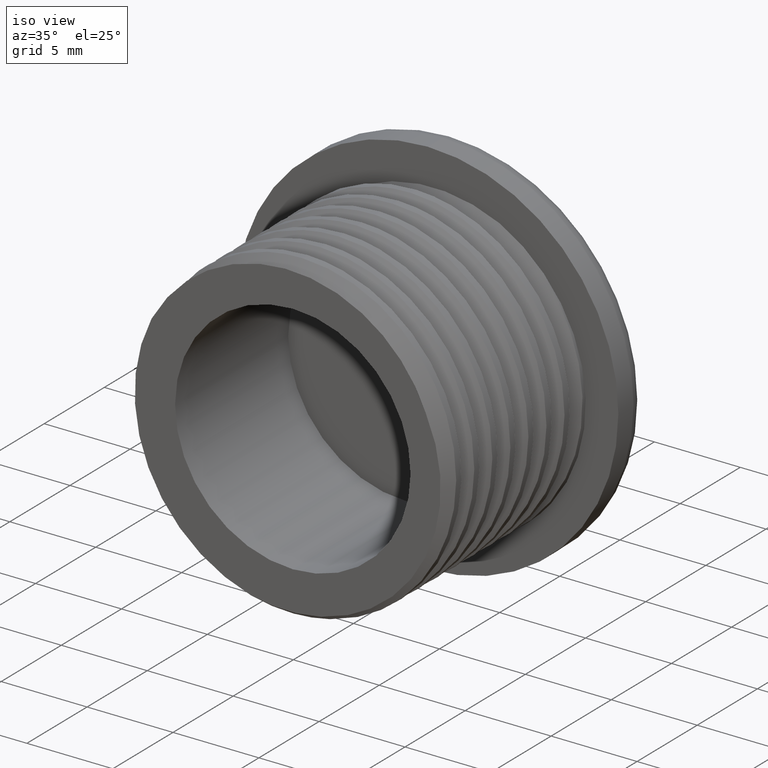
[diagram: clean part render]
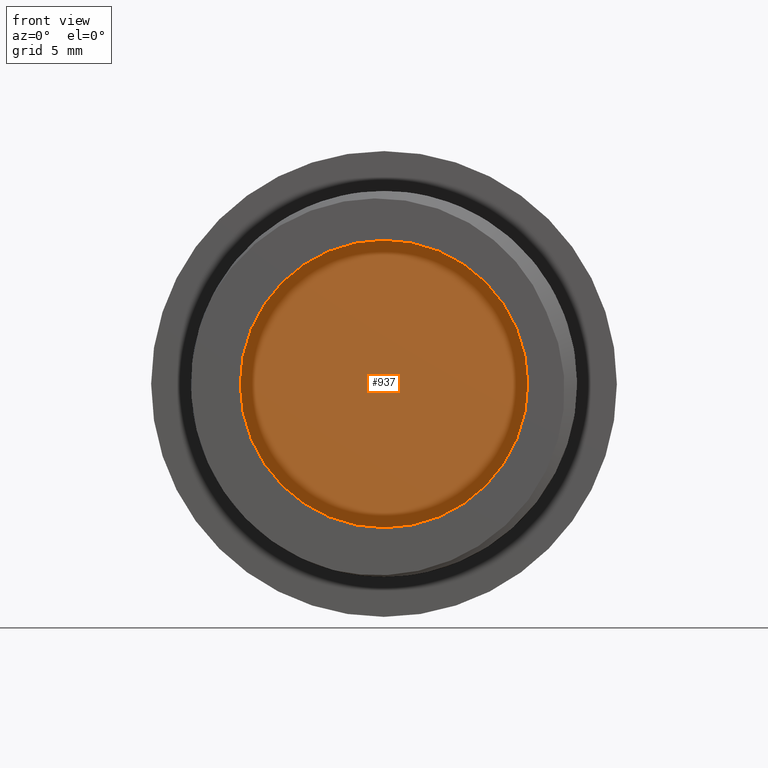
[diagram: tour spotlight — one face highlighted and labeled with its STEP entity id]
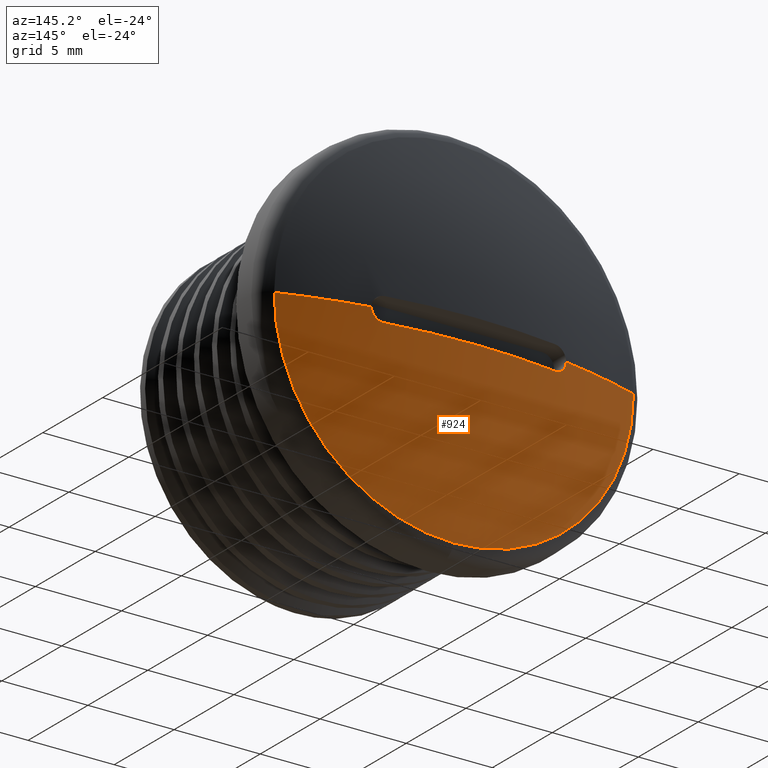
[diagram: tour spotlight — one face highlighted and labeled with its STEP entity id]
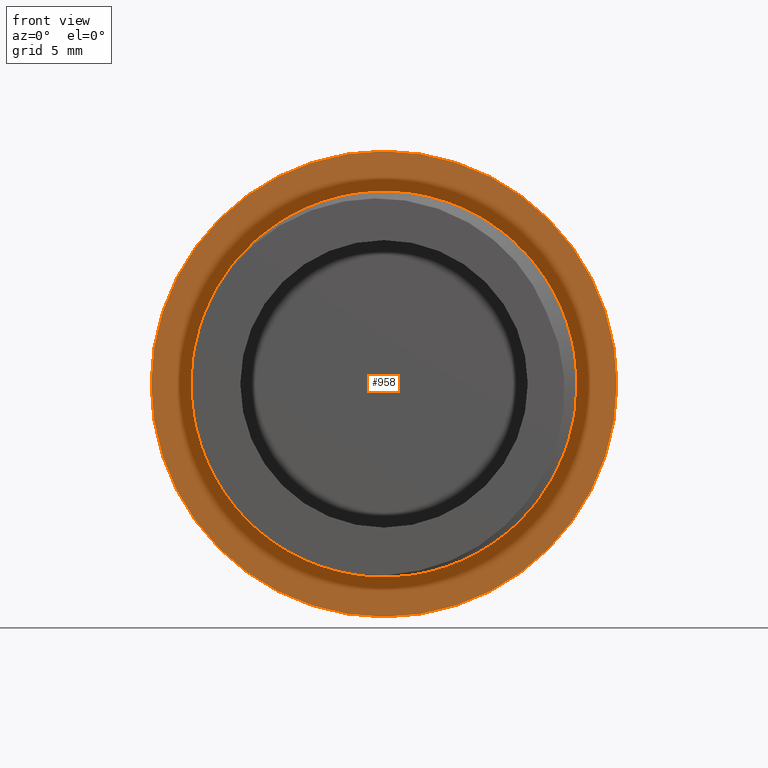
[diagram: tour spotlight — one face highlighted and labeled with its STEP entity id]
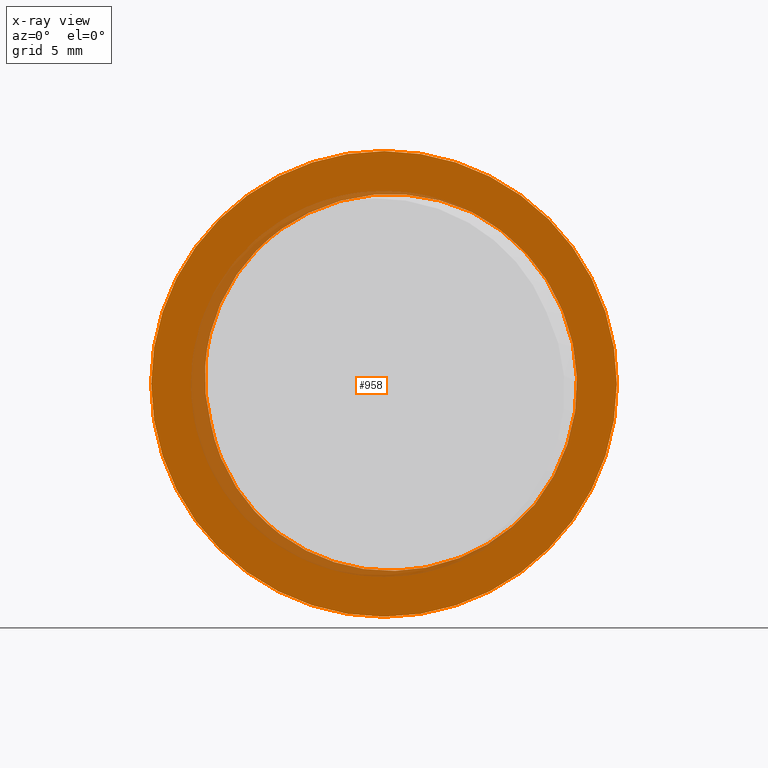
[diagram: x-ray of the same camera — body ghosted, this tour face saturated]
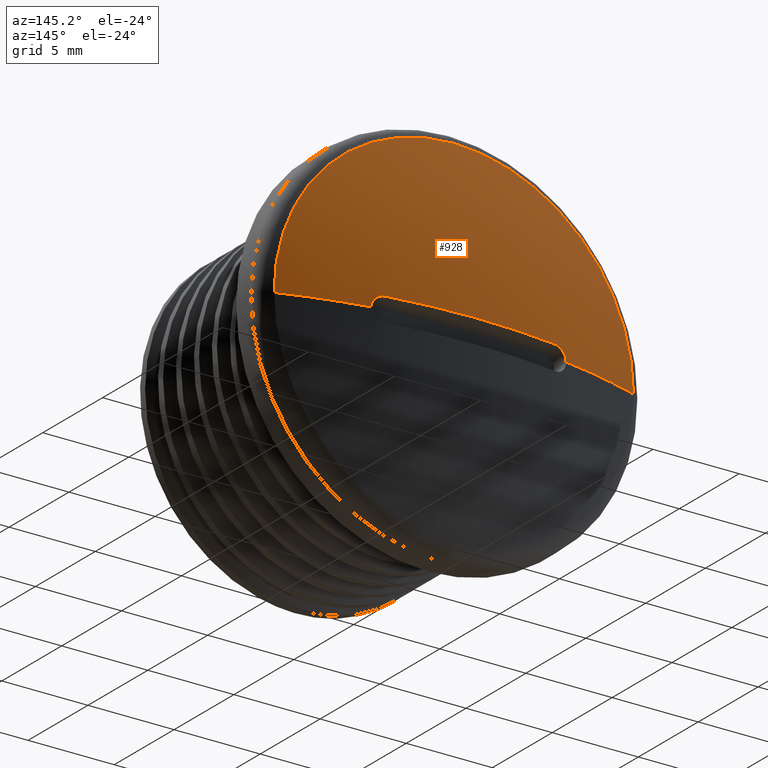
[diagram: tour spotlight — one face highlighted and labeled with its STEP entity id]
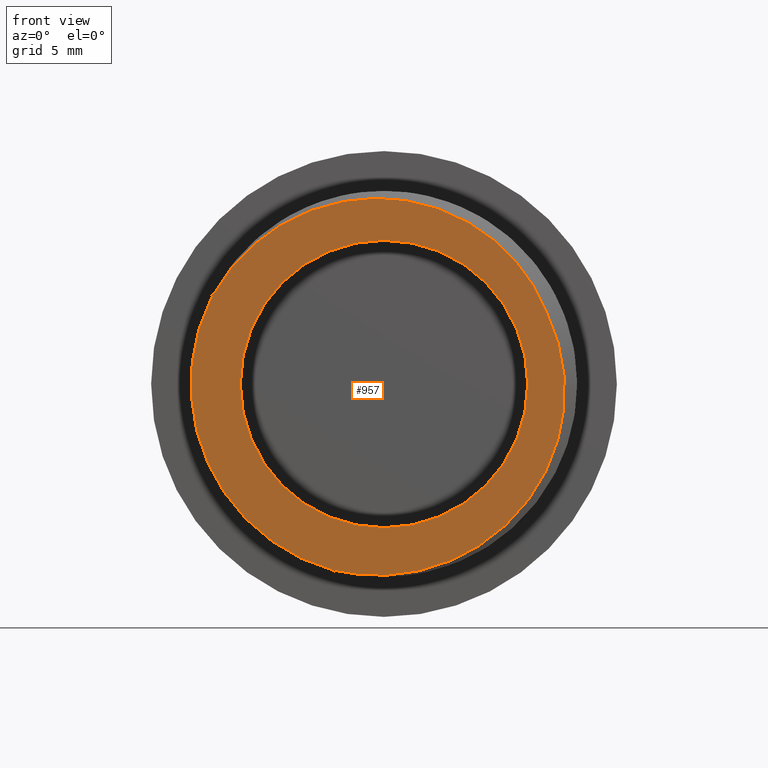
[diagram: tour spotlight — one face highlighted and labeled with its STEP entity id]
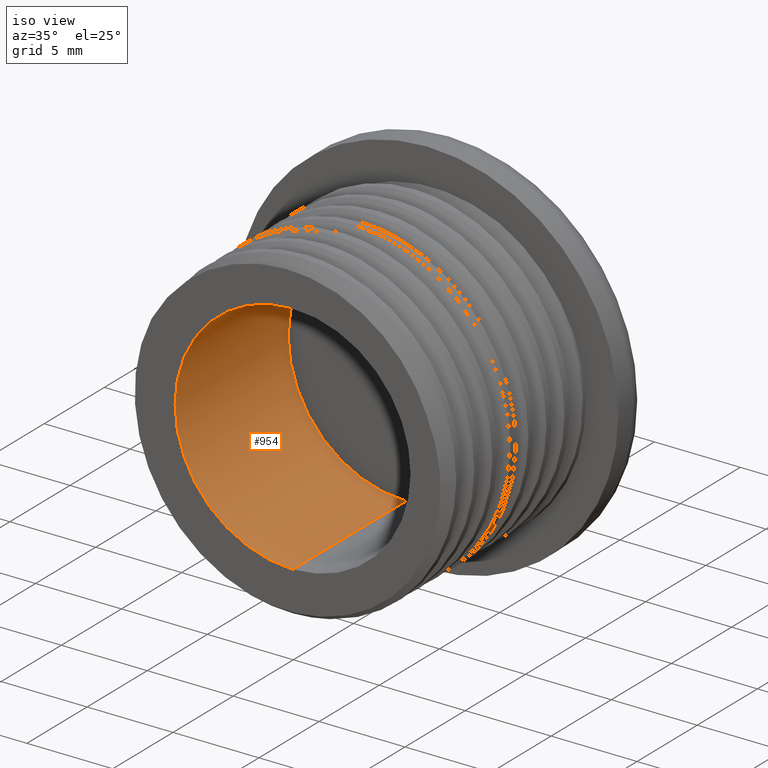
[diagram: tour spotlight — one face highlighted and labeled with its STEP entity id]
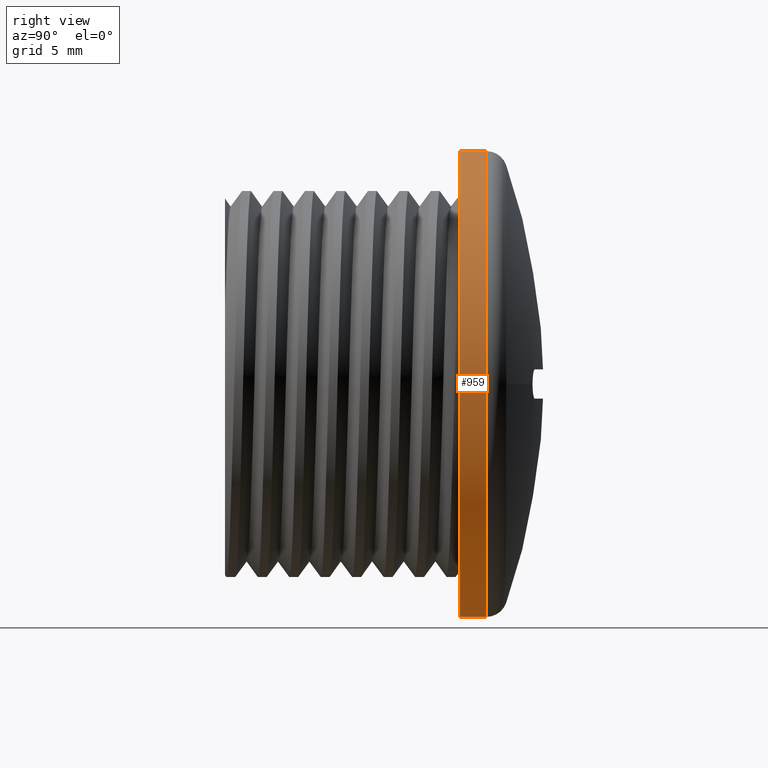
[diagram: tour spotlight — one face highlighted and labeled with its STEP entity id]
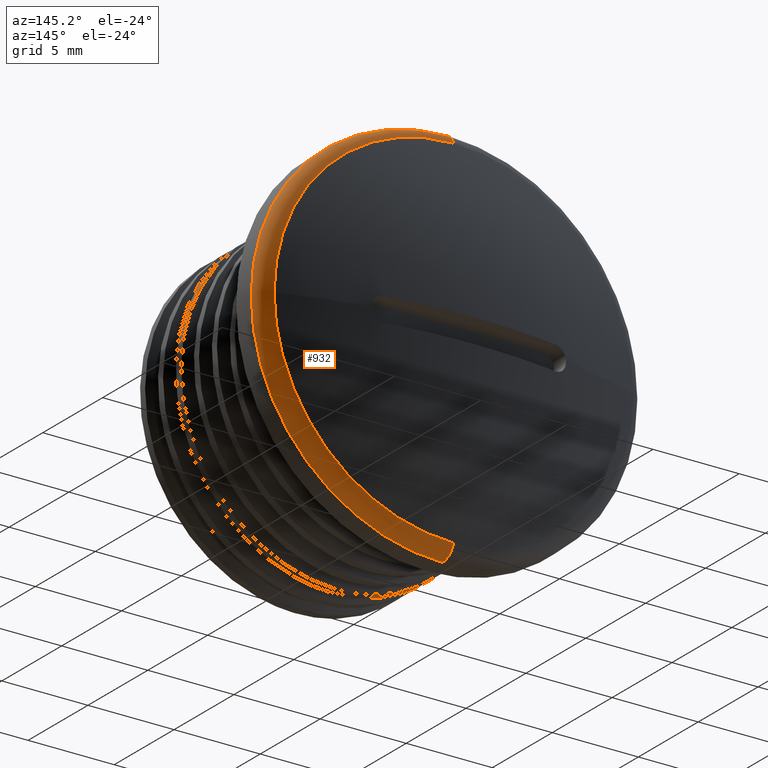
[diagram: tour spotlight — one face highlighted and labeled with its STEP entity id]
A machine part: a face-by-face anatomy tour. The part has 38 B-rep faces; the first image is the clean iso view, then the 8 largest visible faces are spotlighted one at a time (largest first), each with its STEP entity span.

Face 1 — front view, entity #937. In plain terms, the highlighted planar face has unit normal (0, 1, 0).
Definition (entity closure, byte-faithful):
#419 = DIRECTION ( 'NONE',  ( -0.0000000000000000000, -1.000000000000000000, -0.0000000000000000000 ) ) ;
#420 = DIRECTION ( 'NONE',  ( 0.0000000000000000000, 0.0000000000000000000, -1.000000000000000000 ) ) ;
#423 = CARTESIAN_POINT ( 'NONE',  ( 0.0000000000000000000, 9.357954256561425800, 0.0000000000000000000 ) ) ;
#593 = ORIENTED_EDGE ( 'NONE', *, *, #849, .T. ) ;
#607 = ORIENTED_EDGE ( 'NONE', *, *, #905, .T. ) ;
#658 = EDGE_LOOP ( 'NONE', ( #607, #593 ) ) ;
#723 = VERTEX_POINT ( 'NONE', #788 ) ;
#730 = VERTEX_POINT ( 'NONE', #804 ) ;
#788 = CARTESIAN_POINT ( 'NONE',  ( 8.388830574159371800E-016, 9.357954256561425800, 6.850000000000002300 ) ) ;
#804 = CARTESIAN_POINT ( 'NONE',  ( 0.0000000000000000000, 9.357954256561425800, -6.850000000000002300 ) ) ;
#849 = EDGE_CURVE ( 'NONE', #723, #730, #2088, .T. ) ;
#905 = EDGE_CURVE ( 'NONE', #730, #723, #2139, .T. ) ;
#937 = ADVANCED_FACE ( 'NONE', ( #1803 ), #1791, .F. ) ;
#1787 = CARTESIAN_POINT ( 'NONE',  ( -6.850000000000002300, 9.357954256561425800, 0.0000000000000000000 ) ) ;
#1788 = DIRECTION ( 'NONE',  ( 0.0000000000000000000, -0.0000000000000000000, 1.000000000000000000 ) ) ;
#1791 = PLANE ( 'NONE',  #2165 ) ;
#1799 = DIRECTION ( 'NONE',  ( 0.0000000000000000000, 1.000000000000000000, 0.0000000000000000000 ) ) ;
#1803 = FACE_OUTER_BOUND ( 'NONE', #658, .T. ) ;
#2085 = AXIS2_PLACEMENT_3D ( 'NONE', #423, #419, #420 ) ;
#2088 = CIRCLE ( 'NONE', #2085, 6.850000000000002300 ) ;
#2136 = AXIS2_PLACEMENT_3D ( 'NONE', #2284, #2285, #2287 ) ;
#2139 = CIRCLE ( 'NONE', #2136, 6.850000000000002300 ) ;
#2165 = AXIS2_PLACEMENT_3D ( 'NONE', #1787, #1799, #1788 ) ;
#2284 = CARTESIAN_POINT ( 'NONE',  ( 0.0000000000000000000, 9.357954256561425800, 0.0000000000000000000 ) ) ;
#2285 = DIRECTION ( 'NONE',  ( -0.0000000000000000000, -1.000000000000000000, -0.0000000000000000000 ) ) ;
#2287 = DIRECTION ( 'NONE',  ( 0.0000000000000000000, 0.0000000000000000000, -1.000000000000000000 ) ) ;

Face 2 — auxiliary view, entity #924. In plain terms, the highlighted spherical surface has radius 31.7569 mm.
Definition (entity closure, byte-faithful):
#18 = B_SPLINE_CURVE_WITH_KNOTS ( 'NONE', 3,
 ( #2658, #2245, #2249, #2225, #2222, #2234, #2231, #2218 ),
 .UNSPECIFIED., .F., .F.,
 ( 4, 2, 2, 4 ),
 ( -0.001100553868693225000, -0.0008254154015199190100, -0.0005502769343466130300, 0.0000000000000000000 ),
 .UNSPECIFIED. ) ;
#22 = B_SPLINE_CURVE_WITH_KNOTS ( 'NONE', 3,
 ( #1718, #1720, #1766, #1764, #1773, #1759, #1744, #1757 ),
 .UNSPECIFIED., .F., .F.,
 ( 4, 2, 2, 4 ),
 ( 0.001100318231270153700, 0.001375336845004294800, 0.001650355458738436200, 0.002200392686206718000 ),
 .UNSPECIFIED. ) ;
#577 = ORIENTED_EDGE ( 'NONE', *, *, #897, .T. ) ;
#590 = ORIENTED_EDGE ( 'NONE', *, *, #891, .T. ) ;
#594 = ORIENTED_EDGE ( 'NONE', *, *, #899, .T. ) ;
#619 = ORIENTED_EDGE ( 'NONE', *, *, #926, .T. ) ;
#625 = ORIENTED_EDGE ( 'NONE', *, *, #909, .F. ) ;
#628 = ORIENTED_EDGE ( 'NONE', *, *, #907, .T. ) ;
#633 = EDGE_LOOP ( 'NONE', ( #625, #628, #594, #667, #619, #577, #590 ) ) ;
#667 = ORIENTED_EDGE ( 'NONE', *, *, #895, .F. ) ;
#690 = VERTEX_POINT ( 'NONE', #752 ) ;
#696 = VERTEX_POINT ( 'NONE', #771 ) ;
#722 = VERTEX_POINT ( 'NONE', #801 ) ;
#728 = VERTEX_POINT ( 'NONE', #790 ) ;
#741 = VERTEX_POINT ( 'NONE', #791 ) ;
#742 = VERTEX_POINT ( 'NONE', #807 ) ;
#746 = VERTEX_POINT ( 'NONE', #808 ) ;
#752 = CARTESIAN_POINT ( 'NONE',  ( -4.950000000000004600, 14.72652735389495000, -0.6999999999999999600 ) ) ;
#771 = CARTESIAN_POINT ( 'NONE',  ( 5.649999999999996800, 14.61584419252852600, -1.222029661369526900E-030 ) ) ;
#790 = CARTESIAN_POINT ( 'NONE',  ( 10.42838178621516000, 13.36141784469744600, 0.0000000000000000000 ) ) ;
#791 = CARTESIAN_POINT ( 'NONE',  ( -10.42838178621515700, 13.36141784469744600, 0.0000000000000000000 ) ) ;
#801 = CARTESIAN_POINT ( 'NONE',  ( -3.851859888774471700E-031, 13.36141784469744400, -10.42838178621518200 ) ) ;
#807 = CARTESIAN_POINT ( 'NONE',  ( 4.949999999999990400, 14.72652735389495100, -0.6999999999999999600 ) ) ;
#808 = CARTESIAN_POINT ( 'NONE',  ( -5.650000000000004800, 14.61584419252852400, -9.812902158508888800E-031 ) ) ;
#891 = EDGE_CURVE ( 'NONE', #742, #696, #18, .T. ) ;
#895 = EDGE_CURVE ( 'NONE', #746, #741, #2111, .T. ) ;
#897 = EDGE_CURVE ( 'NONE', #690, #742, #2115, .T. ) ;
#899 = EDGE_CURVE ( 'NONE', #722, #741, #2123, .T. ) ;
#907 = EDGE_CURVE ( 'NONE', #728, #722, #2128, .T. ) ;
#909 = EDGE_CURVE ( 'NONE', #728, #696, #2131, .T. ) ;
#924 = ADVANCED_FACE ( 'NONE', ( #1729 ), #1728, .T. ) ;
#926 = EDGE_CURVE ( 'NONE', #746, #690, #22, .T. ) ;
#1711 = DIRECTION ( 'NONE',  ( 0.0000000000000000000, 0.0000000000000000000, -1.000000000000000000 ) ) ;
#1714 = CARTESIAN_POINT ( 'NONE',  ( 1.734723475976807100E-015, -16.63438914191762300, 0.0000000000000000000 ) ) ;
#1716 = DIRECTION ( 'NONE',  ( 0.0000000000000000000, 1.000000000000000000, 0.0000000000000000000 ) ) ;
#1718 = CARTESIAN_POINT ( 'NONE',  ( -5.650000000000004800, 14.61584419252852400, -9.812902158508888800E-031 ) ) ;
#1720 = CARTESIAN_POINT ( 'NONE',  ( -5.650000000000004800, 14.61584419252851700, -0.09301947684543464300 ) ) ;
#1728 = SPHERICAL_SURFACE ( 'NONE', #2150, 31.75688245809605400 ) ;
#1729 = FACE_OUTER_BOUND ( 'NONE', #633, .T. ) ;
#1744 = CARTESIAN_POINT ( 'NONE',  ( -5.133701093567862200, 14.69753201463939600, -0.7000000000000020700 ) ) ;
#1757 = CARTESIAN_POINT ( 'NONE',  ( -4.950000000000004600, 14.72652735389495000, -0.6999999999999999600 ) ) ;
#1759 = CARTESIAN_POINT ( 'NONE',  ( -5.314240996689610700, 14.66898953692324000, -0.6250006597812448600 ) ) ;
#1764 = CARTESIAN_POINT ( 'NONE',  ( -5.560707814705822600, 14.62998527284683100, -0.3542753242053725000 ) ) ;
#1766 = CARTESIAN_POINT ( 'NONE',  ( -5.631541582568520900, 14.61876835048204300, -0.1843261010100846500 ) ) ;
#1773 = CARTESIAN_POINT ( 'NONE',  ( -5.508312944224333500, 14.63828087664186700, -0.4319849400276403700 ) ) ;
#2111 = CIRCLE ( 'NONE', #2113, 31.75688245809605400 ) ;
#2113 = AXIS2_PLACEMENT_3D ( 'NONE', #2203, #2236, #2248 ) ;
#2115 = CIRCLE ( 'NONE', #2119, 31.74916665768298800 ) ;
#2119 = AXIS2_PLACEMENT_3D ( 'NONE', #2210, #2227, #2233 ) ;
#2123 = CIRCLE ( 'NONE', #2124, 10.42838178621518400 ) ;
#2124 = AXIS2_PLACEMENT_3D ( 'NONE', #2217, #2267, #2264 ) ;
#2128 = CIRCLE ( 'NONE', #2130, 10.42838178621518400 ) ;
#2130 = AXIS2_PLACEMENT_3D ( 'NONE', #2290, #2281, #2282 ) ;
#2131 = CIRCLE ( 'NONE', #2132, 31.75688245809605400 ) ;
#2132 = AXIS2_PLACEMENT_3D ( 'NONE', #2298, #2297, #2299 ) ;
#2150 = AXIS2_PLACEMENT_3D ( 'NONE', #1714, #1711, #1716 ) ;
#2203 = CARTESIAN_POINT ( 'NONE',  ( 1.734723475976807100E-015, -16.63438914191762300, 0.0000000000000000000 ) ) ;
#2210 = CARTESIAN_POINT ( 'NONE',  ( 1.734723475976807100E-015, -16.63438914191762300, -0.6999999999999999600 ) ) ;
#2217 = CARTESIAN_POINT ( 'NONE',  ( 1.734723475976807100E-015, 13.36141784469744400, 0.0000000000000000000 ) ) ;
#2218 = CARTESIAN_POINT ( 'NONE',  ( 5.649999999999996800, 14.61584419252852600, -1.222029661369526900E-030 ) ) ;
#2222 = CARTESIAN_POINT ( 'NONE',  ( 5.378466025951339300, 14.65882697501017300, -0.5610329707070956800 ) ) ;
#2225 = CARTESIAN_POINT ( 'NONE',  ( 5.300960743644564500, 14.67108562583010700, -0.6125157466901041100 ) ) ;
#2227 = DIRECTION ( 'NONE',  ( -0.0000000000000000000, -0.0000000000000000000, -1.000000000000000000 ) ) ;
#2231 = CARTESIAN_POINT ( 'NONE',  ( 5.649999999999995000, 14.61584419252851700, -0.1860801798949975000 ) ) ;
#2233 = DIRECTION ( 'NONE',  ( 1.000000000000000000, 9.725634126184213800E-015, 0.0000000000000000000 ) ) ;
#2234 = CARTESIAN_POINT ( 'NONE',  ( 5.572871555472822500, 14.62806558607044100, -0.3679613347115094900 ) ) ;
#2236 = DIRECTION ( 'NONE',  ( 0.0000000000000000000, -0.0000000000000000000, 1.000000000000000000 ) ) ;
#2245 = CARTESIAN_POINT ( 'NONE',  ( 5.041869787556470900, 14.71202664730797400, -0.7000000000000019500 ) ) ;
#2248 = DIRECTION ( 'NONE',  ( 1.000000000000000000, 0.0000000000000000000, 0.0000000000000000000 ) ) ;
#2249 = CARTESIAN_POINT ( 'NONE',  ( 5.131973747917680100, 14.69779433915796800, -0.6820810352089222700 ) ) ;
#2264 = DIRECTION ( 'NONE',  ( 0.0000000000000000000, 0.0000000000000000000, -1.000000000000000000 ) ) ;
#2267 = DIRECTION ( 'NONE',  ( 0.0000000000000000000, 1.000000000000000000, 0.0000000000000000000 ) ) ;
#2281 = DIRECTION ( 'NONE',  ( 0.0000000000000000000, 1.000000000000000000, 0.0000000000000000000 ) ) ;
#2282 = DIRECTION ( 'NONE',  ( 0.0000000000000000000, 0.0000000000000000000, -1.000000000000000000 ) ) ;
#2290 = CARTESIAN_POINT ( 'NONE',  ( 1.734723475976807100E-015, 13.36141784469744400, 0.0000000000000000000 ) ) ;
#2297 = DIRECTION ( 'NONE',  ( 0.0000000000000000000, -0.0000000000000000000, 1.000000000000000000 ) ) ;
#2298 = CARTESIAN_POINT ( 'NONE',  ( 1.734723475976807100E-015, -16.63438914191762300, 0.0000000000000000000 ) ) ;
#2299 = DIRECTION ( 'NONE',  ( 1.000000000000000000, 0.0000000000000000000, 0.0000000000000000000 ) ) ;
#2658 = CARTESIAN_POINT ( 'NONE',  ( 4.949999999999990400, 14.72652735389495100, -0.6999999999999999600 ) ) ;

Face 3 — front view, entity #958. An x-ray twin of the same camera follows (body ghosted, this face saturated) — the face is partly hidden behind the body. In plain terms, the highlighted planar face has unit normal (0, 1, 0).
Definition (entity closure, byte-faithful):
#21 = B_SPLINE_CURVE_WITH_KNOTS ( 'NONE', 3,
 ( #2289, #2307, #2320, #2321, #2322, #2318, #2317, #2319, #2316, #2332, #2330, #2325, #2329, #2328, #2323, #2331, #2333, #2324, #2334, #2326, #2327, #2348, #2338, #2349, #2350, #2358, #2359, #2354, #2346, #2357, #2360, #2355 ),
 .UNSPECIFIED., .F., .F.,
 ( 4, 2, 2, 2, 2, 2, 2, 2, 2, 2, 2, 2, 2, 2, 2, 4 ),
 ( 0.001408011561894134300, 0.002656530163431334300, 0.003905048764968534600, 0.005153567366505733300, 0.006402085968042933200, 0.007650604569580133100, 0.008899123171117333900, 0.01014764177265453300, 0.01139616037419173400, 0.01389319757726613200, 0.01514171617880332900, 0.01639023478034052800, 0.01763875338187772400, 0.01888727198341492300, 0.02013579058495212200, 0.02138430918648932100 ),
 .UNSPECIFIED. ) ;
#23 = B_SPLINE_CURVE_WITH_KNOTS ( 'NONE', 3,
 ( #2582, #2583, #2616, #2625, #2609, #2610, #2629, #2628, #2630, #2631, #2634, #2637, #2638, #2632, #2640, #2639, #2633, #2635, #2636, #2641, #2642, #2654, #2648, #2643, #2656, #2649, #2644, #2655, #2645, #2653, #2646, #2651 ),
 .UNSPECIFIED., .F., .F.,
 ( 4, 2, 2, 2, 2, 2, 2, 2, 2, 2, 2, 2, 2, 2, 2, 4 ),
 ( 0.001395362550991325300, 0.002644505119825085700, 0.003893647688658846600, 0.005142790257492606600, 0.006391932826326367900, 0.007641075395160127500, 0.008890217963993888800, 0.01013936053282765000, 0.01138850310166140600, 0.01388678823932892500, 0.01513593080816268800, 0.01638507337699644400, 0.01763421594583020800, 0.01888335851466396700, 0.02013250108349773000, 0.02138164365233148600 ),
 .UNSPECIFIED. ) ;
#567 = ORIENTED_EDGE ( 'NONE', *, *, #890, .T. ) ;
#584 = ORIENTED_EDGE ( 'NONE', *, *, #886, .F. ) ;
#586 = ORIENTED_EDGE ( 'NONE', *, *, #902, .T. ) ;
#600 = ORIENTED_EDGE ( 'NONE', *, *, #884, .F. ) ;
#609 = ORIENTED_EDGE ( 'NONE', *, *, #913, .T. ) ;
#671 = EDGE_LOOP ( 'NONE', ( #600, #584, #609 ) ) ;
#673 = VERTEX_POINT ( 'NONE', #731 ) ;
#679 = EDGE_LOOP ( 'NONE', ( #586, #567 ) ) ;
#686 = VERTEX_POINT ( 'NONE', #733 ) ;
#704 = VERTEX_POINT ( 'NONE', #761 ) ;
#705 = VERTEX_POINT ( 'NONE', #750 ) ;
#713 = VERTEX_POINT ( 'NONE', #810 ) ;
#731 = CARTESIAN_POINT ( 'NONE',  ( 7.188785191184167400, 11.15795425656143000, -5.741199132150984300 ) ) ;
#733 = CARTESIAN_POINT ( 'NONE',  ( 4.186545021059163000, 11.15795425656143000, 8.192242720198464700 ) ) ;
#750 = CARTESIAN_POINT ( 'NONE',  ( 1.359357947053562200E-015, 11.15795425656142800, 11.10000000000000000 ) ) ;
#761 = CARTESIAN_POINT ( 'NONE',  ( -8.273300490279973800, 11.15795425656143000, -1.790657539356323100 ) ) ;
#810 = CARTESIAN_POINT ( 'NONE',  ( 0.0000000000000000000, 11.15795425656142800, -11.10000000000000000 ) ) ;
#884 = EDGE_CURVE ( 'NONE', #686, #704, #23, .T. ) ;
#886 = EDGE_CURVE ( 'NONE', #673, #686, #2103, .T. ) ;
#890 = EDGE_CURVE ( 'NONE', #705, #713, #2106, .T. ) ;
#902 = EDGE_CURVE ( 'NONE', #713, #705, #2118, .T. ) ;
#913 = EDGE_CURVE ( 'NONE', #673, #704, #21, .T. ) ;
#958 = ADVANCED_FACE ( 'NONE', ( #1343, #1314 ), #1328, .F. ) ;
#1314 = FACE_BOUND ( 'NONE', #671, .T. ) ;
#1328 = PLANE ( 'NONE',  #2170 ) ;
#1330 = CARTESIAN_POINT ( 'NONE',  ( -9.250000000000000000, 11.15795425656142800, 0.0000000000000000000 ) ) ;
#1334 = DIRECTION ( 'NONE',  ( 0.0000000000000000000, 1.000000000000000000, 0.0000000000000000000 ) ) ;
#1337 = DIRECTION ( 'NONE',  ( 0.0000000000000000000, -0.0000000000000000000, 1.000000000000000000 ) ) ;
#1343 = FACE_OUTER_BOUND ( 'NONE', #679, .T. ) ;
#2100 = AXIS2_PLACEMENT_3D ( 'NONE', #2666, #2667, #2668 ) ;
#2103 = CIRCLE ( 'NONE', #2100, 9.199999999999999300 ) ;
#2106 = CIRCLE ( 'NONE', #2116, 11.10000000000000000 ) ;
#2116 = AXIS2_PLACEMENT_3D ( 'NONE', #2242, #2205, #2235 ) ;
#2118 = CIRCLE ( 'NONE', #2126, 11.10000000000000000 ) ;
#2126 = AXIS2_PLACEMENT_3D ( 'NONE', #2258, #2278, #2259 ) ;
#2170 = AXIS2_PLACEMENT_3D ( 'NONE', #1330, #1334, #1337 ) ;
#2205 = DIRECTION ( 'NONE',  ( -0.0000000000000000000, -1.000000000000000000, -0.0000000000000000000 ) ) ;
#2235 = DIRECTION ( 'NONE',  ( 0.0000000000000000000, 0.0000000000000000000, 1.000000000000000000 ) ) ;
#2242 = CARTESIAN_POINT ( 'NONE',  ( 0.0000000000000000000, 11.15795425656142800, 0.0000000000000000000 ) ) ;
#2258 = CARTESIAN_POINT ( 'NONE',  ( 0.0000000000000000000, 11.15795425656142800, 0.0000000000000000000 ) ) ;
#2259 = DIRECTION ( 'NONE',  ( 0.0000000000000000000, 0.0000000000000000000, 1.000000000000000000 ) ) ;
#2278 = DIRECTION ( 'NONE',  ( -0.0000000000000000000, -1.000000000000000000, -0.0000000000000000000 ) ) ;
#2289 = CARTESIAN_POINT ( 'NONE',  ( 7.188785191184167400, 11.15795425656143000, -5.741199132150984300 ) ) ;
#2307 = CARTESIAN_POINT ( 'NONE',  ( 6.917656769596528800, 11.15795425656142500, -6.057384195948339200 ) ) ;
#2316 = CARTESIAN_POINT ( 'NONE',  ( 3.489942383504418100, 11.15795425656143200, -8.347123565204421800 ) ) ;
#2317 = CARTESIAN_POINT ( 'NONE',  ( 4.628551878089298900, 11.15795425656142800, -7.827525332827249800 ) ) ;
#2318 = CARTESIAN_POINT ( 'NONE',  ( 4.988644888748166500, 11.15795425656141200, -7.620778906129192600 ) ) ;
#2319 = CARTESIAN_POINT ( 'NONE',  ( 3.874964288274329100, 11.15795425656142500, -8.192731176202034500 ) ) ;
#2320 = CARTESIAN_POINT ( 'NONE',  ( 6.622947546513685800, 11.15795425656140500, -6.357724825564349500 ) ) ;
#2321 = CARTESIAN_POINT ( 'NONE',  ( 6.002423317226059000, 11.15795425656140900, -6.909195106391463200 ) ) ;
#2322 = CARTESIAN_POINT ( 'NONE',  ( 5.675467226553828400, 11.15795425656141600, -7.161672792936919100 ) ) ;
#2323 = CARTESIAN_POINT ( 'NONE',  ( -0.1745108758747649600, 11.15795425656142800, -8.910676518136501300 ) ) ;
#2324 = CARTESIAN_POINT ( 'NONE',  ( -2.624790493475833000, 11.15795425656142600, -8.452914525474206200 ) ) ;
#2325 = CARTESIAN_POINT ( 'NONE',  ( 1.485585393416659200, 11.15795425656142800, -8.847381160868288000 ) ) ;
#2326 = CARTESIAN_POINT ( 'NONE',  ( -4.469323493066011300, 11.15795425656142500, -7.513859534481179400 ) ) ;
#2327 = CARTESIAN_POINT ( 'NONE',  ( -4.816717804410510300, 11.15795425656143500, -7.276886087482930400 ) ) ;
#2328 = CARTESIAN_POINT ( 'NONE',  ( 0.2382064741041919100, 11.15795425656142800, -8.923366014266036900 ) ) ;
#2329 = CARTESIAN_POINT ( 'NONE',  ( 1.066796593838512000, 11.15795425656142800, -8.892220006701775100 ) ) ;
#2330 = CARTESIAN_POINT ( 'NONE',  ( 2.303282253825642100, 11.15795425656142800, -8.701977520399452700 ) ) ;
#2331 = CARTESIAN_POINT ( 'NONE',  ( -0.9966844940706002200, 11.15795425656142800, -8.826879737089170100 ) ) ;
#2332 = CARTESIAN_POINT ( 'NONE',  ( 2.704102306608808300, 11.15795425656142600, -8.601749961272531700 ) ) ;
#2333 = CARTESIAN_POINT ( 'NONE',  ( -1.407960821810553500, 11.15795425656142600, -8.755504045401499600 ) ) ;
#2334 = CARTESIAN_POINT ( 'NONE',  ( -3.389926287971317000, 11.15795425656142600, -8.142018065527297600 ) ) ;
#2338 = CARTESIAN_POINT ( 'NONE',  ( -5.771063699723971900, 11.15795425656143000, -6.484422593353572000 ) ) ;
#2346 = CARTESIAN_POINT ( 'NONE',  ( -7.833078979364875800, 11.15795425656143400, -3.403816386270553300 ) ) ;
#2348 = CARTESIAN_POINT ( 'NONE',  ( -5.466080889295431800, 11.15795425656143500, -6.762975692846795900 ) ) ;
#2349 = CARTESIAN_POINT ( 'NONE',  ( -6.341626793831315100, 11.15795425656143000, -5.884115039193441800 ) ) ;
#2350 = CARTESIAN_POINT ( 'NONE',  ( -6.608736290562347000, 11.15795425656142500, -5.558890420612843100 ) ) ;
#2354 = CARTESIAN_POINT ( 'NONE',  ( -7.673215873930105100, 11.15795425656143000, -3.786442580389097300 ) ) ;
#2355 = CARTESIAN_POINT ( 'NONE',  ( -8.273300490279973800, 11.15795425656143000, -1.790657539356323100 ) ) ;
#2357 = CARTESIAN_POINT ( 'NONE',  ( -8.097812117851777500, 11.15795425656143700, -2.609387352893878500 ) ) ;
#2358 = CARTESIAN_POINT ( 'NONE',  ( -7.088058832032468900, 11.15795425656142800, -4.878312070428045800 ) ) ;
#2359 = CARTESIAN_POINT ( 'NONE',  ( -7.300708354592538600, 11.15795425656142600, -4.523691777670189000 ) ) ;
#2360 = CARTESIAN_POINT ( 'NONE',  ( -8.200619608734719200, 11.15795425656143000, -2.203463436729323500 ) ) ;
#2582 = CARTESIAN_POINT ( 'NONE',  ( 4.186545021059163000, 11.15795425656143000, 8.192242720198464700 ) ) ;
#2583 = CARTESIAN_POINT ( 'NONE',  ( 3.808857140606334700, 11.15795425656142800, 8.368301802404500800 ) ) ;
#2609 = CARTESIAN_POINT ( 'NONE',  ( 2.219780997296704000, 11.15795425656142800, 8.859743726050604500 ) ) ;
#2610 = CARTESIAN_POINT ( 'NONE',  ( 1.404330378369097200, 11.15795425656142600, 8.994875944078859900 ) ) ;
#2616 = CARTESIAN_POINT ( 'NONE',  ( 3.415932419880090900, 11.15795425656142800, 8.519661558861074000 ) ) ;
#2625 = CARTESIAN_POINT ( 'NONE',  ( 2.622134718988470900, 11.15795425656143000, 8.764870203496553100 ) ) ;
#2628 = CARTESIAN_POINT ( 'NONE',  ( 0.1538640485770831100, 11.15795425656143000, 9.058838703847447600 ) ) ;
#2629 = CARTESIAN_POINT ( 'NONE',  ( 0.9912347116832428400, 11.15795425656143000, 9.035140895270942000 ) ) ;
#2630 = CARTESIAN_POINT ( 'NONE',  ( -0.2613797649674919300, 11.15795425656142600, 9.042122460419470500 ) ) ;
#2631 = CARTESIAN_POINT ( 'NONE',  ( -1.082679878616774600, 11.15795425656142500, 8.951606633772437100 ) ) ;
#2632 = CARTESIAN_POINT ( 'NONE',  ( -3.462301423058609100, 11.15795425656142300, 8.226109221799081400 ) ) ;
#2633 = CARTESIAN_POINT ( 'NONE',  ( -4.891364546294907400, 11.15795425656142800, 7.391370828859957800 ) ) ;
#2634 = CARTESIAN_POINT ( 'NONE',  ( -1.489153553390045100, 11.15795425656142800, 8.878051428828706900 ) ) ;
#2635 = CARTESIAN_POINT ( 'NONE',  ( -5.876566365779276600, 11.15795425656142800, 6.613132513500402400 ) ) ;
#2636 = CARTESIAN_POINT ( 'NONE',  ( -6.447738314373748600, 11.15795425656143000, 6.015889489908694500 ) ) ;
#2637 = CARTESIAN_POINT ( 'NONE',  ( -2.293631407910842900, 11.15795425656143000, 8.673555519321388000 ) ) ;
#2638 = CARTESIAN_POINT ( 'NONE',  ( -2.693984786418382300, 11.15795425656142600, 8.541294285429257700 ) ) ;
#2639 = CARTESIAN_POINT ( 'NONE',  ( -4.546865119284022100, 11.15795425656142600, 7.625903697403952500 ) ) ;
#2640 = CARTESIAN_POINT ( 'NONE',  ( -3.832807731653083700, 11.15795425656142600, 8.042900211100462800 ) ) ;
#2641 = CARTESIAN_POINT ( 'NONE',  ( -7.172596241341693700, 11.15795425656143000, 4.999233711388513700 ) ) ;
#2642 = CARTESIAN_POINT ( 'NONE',  ( -7.391661137426522600, 11.15795425656142600, 4.639377376849359400 ) ) ;
#2643 = CARTESIAN_POINT ( 'NONE',  ( -8.202323492022735300, 11.15795425656143000, 2.739020707725456500 ) ) ;
#2644 = CARTESIAN_POINT ( 'NONE',  ( -8.512723677239584700, 11.15795425656142800, 1.102163031309656400 ) ) ;
#2645 = CARTESIAN_POINT ( 'NONE',  ( -8.537430836373522100, 11.15795425656142600, -0.1385590576691074500 ) ) ;
#2646 = CARTESIAN_POINT ( 'NONE',  ( -8.377897562408458400, 11.15795425656143000, -1.384449239760972000 ) ) ;
#2648 = CARTESIAN_POINT ( 'NONE',  ( -7.932751307305084200, 11.15795425656142300, 3.522138655217173000 ) ) ;
#2649 = CARTESIAN_POINT ( 'NONE',  ( -8.465364099205755700, 11.15795425656143000, 1.513482765174491300 ) ) ;
#2651 = CARTESIAN_POINT ( 'NONE',  ( -8.273300490279973800, 11.15795425656143000, -1.790657539356323100 ) ) ;
#2653 = CARTESIAN_POINT ( 'NONE',  ( -8.451786976158892600, 11.15795425656142500, -0.9715909459464567900 ) ) ;
#2654 = CARTESIAN_POINT ( 'NONE',  ( -7.770644182477139900, 11.15795425656142600, 3.902220636403150400 ) ) ;
#2655 = CARTESIAN_POINT ( 'NONE',  ( -8.548613764653639500, 11.15795425656142800, 0.2761338641034709100 ) ) ;
#2656 = CARTESIAN_POINT ( 'NONE',  ( -8.310323161941992600, 11.15795425656143000, 2.332646524129156500 ) ) ;
#2666 = CARTESIAN_POINT ( 'NONE',  ( 0.0000000000000000000, 11.15795425656143000, 0.0000000000000000000 ) ) ;
#2667 = DIRECTION ( 'NONE',  ( -0.0000000000000000000, -1.000000000000000000, -0.0000000000000000000 ) ) ;
#2668 = DIRECTION ( 'NONE',  ( 1.776356839400250500E-015, 0.0000000000000000000, 1.000000000000000000 ) ) ;

Face 4 — auxiliary view, entity #928. In plain terms, the highlighted spherical surface has radius 31.7569 mm.
Definition (entity closure, byte-faithful):
#16 = B_SPLINE_CURVE_WITH_KNOTS ( 'NONE', 3,
 ( #2768, #2765, #2772, #2778, #2773, #2774, #2776, #2777 ),
 .UNSPECIFIED., .F., .F.,
 ( 4, 2, 2, 4 ),
 ( 4.402715280944194900E-018, 0.0002750795578175416300, 0.0005501591156350789200, 0.001100318231270153700 ),
 .UNSPECIFIED. ) ;
#20 = B_SPLINE_CURVE_WITH_KNOTS ( 'NONE', 3,
 ( #2303, #2292, #2305, #2306, #2308, #2310, #2314, #2311 ),
 .UNSPECIFIED., .F., .F.,
 ( 4, 2, 2, 4 ),
 ( 5.421010862427522200E-020, 0.0002750775100384977500, 0.0005501550200769954900, 0.001100310040153990100 ),
 .UNSPECIFIED. ) ;
#455 = ORIENTED_EDGE ( 'NONE', *, *, #882, .T. ) ;
#475 = ORIENTED_EDGE ( 'NONE', *, *, #909, .T. ) ;
#539 = ORIENTED_EDGE ( 'NONE', *, *, #912, .T. ) ;
#553 = ORIENTED_EDGE ( 'NONE', *, *, #915, .T. ) ;
#557 = ORIENTED_EDGE ( 'NONE', *, *, #903, .T. ) ;
#558 = ORIENTED_EDGE ( 'NONE', *, *, #895, .T. ) ;
#574 = ORIENTED_EDGE ( 'NONE', *, *, #887, .T. ) ;
#683 = EDGE_LOOP ( 'NONE', ( #557, #574, #475, #539, #455, #553, #558 ) ) ;
#687 = VERTEX_POINT ( 'NONE', #766 ) ;
#696 = VERTEX_POINT ( 'NONE', #771 ) ;
#703 = VERTEX_POINT ( 'NONE', #749 ) ;
#717 = VERTEX_POINT ( 'NONE', #797 ) ;
#728 = VERTEX_POINT ( 'NONE', #790 ) ;
#741 = VERTEX_POINT ( 'NONE', #791 ) ;
#746 = VERTEX_POINT ( 'NONE', #808 ) ;
#749 = CARTESIAN_POINT ( 'NONE',  ( -4.949999999999999300, 14.72652735389495100, 0.6999999999999999600 ) ) ;
#766 = CARTESIAN_POINT ( 'NONE',  ( 4.949999999999996600, 14.72652735389495100, 0.6999999999999999600 ) ) ;
#771 = CARTESIAN_POINT ( 'NONE',  ( 5.649999999999996800, 14.61584419252852600, -1.222029661369526900E-030 ) ) ;
#790 = CARTESIAN_POINT ( 'NONE',  ( 10.42838178621516000, 13.36141784469744600, 0.0000000000000000000 ) ) ;
#791 = CARTESIAN_POINT ( 'NONE',  ( -10.42838178621515700, 13.36141784469744600, 0.0000000000000000000 ) ) ;
#797 = CARTESIAN_POINT ( 'NONE',  ( 1.318233192265530200E-015, 13.36141784469744400, 10.42838178621518200 ) ) ;
#808 = CARTESIAN_POINT ( 'NONE',  ( -5.650000000000004800, 14.61584419252852400, -9.812902158508888800E-031 ) ) ;
#882 = EDGE_CURVE ( 'NONE', #687, #703, #2109, .T. ) ;
#887 = EDGE_CURVE ( 'NONE', #717, #728, #2110, .T. ) ;
#895 = EDGE_CURVE ( 'NONE', #746, #741, #2111, .T. ) ;
#903 = EDGE_CURVE ( 'NONE', #741, #717, #2127, .T. ) ;
#909 = EDGE_CURVE ( 'NONE', #728, #696, #2131, .T. ) ;
#912 = EDGE_CURVE ( 'NONE', #696, #687, #20, .T. ) ;
#915 = EDGE_CURVE ( 'NONE', #703, #746, #16, .T. ) ;
#928 = ADVANCED_FACE ( 'NONE', ( #1748 ), #1740, .T. ) ;
#1740 = SPHERICAL_SURFACE ( 'NONE', #2151, 31.75688245809605400 ) ;
#1748 = FACE_OUTER_BOUND ( 'NONE', #683, .T. ) ;
#1762 = DIRECTION ( 'NONE',  ( 0.0000000000000000000, 1.000000000000000000, 0.0000000000000000000 ) ) ;
#1767 = CARTESIAN_POINT ( 'NONE',  ( 1.734723475976807100E-015, -16.63438914191762300, 0.0000000000000000000 ) ) ;
#1779 = DIRECTION ( 'NONE',  ( 0.0000000000000000000, 0.0000000000000000000, -1.000000000000000000 ) ) ;
#2099 = AXIS2_PLACEMENT_3D ( 'NONE', #2659, #2663, #2660 ) ;
#2107 = AXIS2_PLACEMENT_3D ( 'NONE', #2581, #2573, #2589 ) ;
#2109 = CIRCLE ( 'NONE', #2107, 31.74916665768295200 ) ;
#2110 = CIRCLE ( 'NONE', #2099, 10.42838178621518400 ) ;
#2111 = CIRCLE ( 'NONE', #2113, 31.75688245809605400 ) ;
#2113 = AXIS2_PLACEMENT_3D ( 'NONE', #2203, #2236, #2248 ) ;
#2120 = AXIS2_PLACEMENT_3D ( 'NONE', #2273, #2279, #2250 ) ;
#2127 = CIRCLE ( 'NONE', #2120, 10.42838178621518400 ) ;
#2131 = CIRCLE ( 'NONE', #2132, 31.75688245809605400 ) ;
#2132 = AXIS2_PLACEMENT_3D ( 'NONE', #2298, #2297, #2299 ) ;
#2151 = AXIS2_PLACEMENT_3D ( 'NONE', #1767, #1779, #1762 ) ;
#2203 = CARTESIAN_POINT ( 'NONE',  ( 1.734723475976807100E-015, -16.63438914191762300, 0.0000000000000000000 ) ) ;
#2236 = DIRECTION ( 'NONE',  ( 0.0000000000000000000, -0.0000000000000000000, 1.000000000000000000 ) ) ;
#2248 = DIRECTION ( 'NONE',  ( 1.000000000000000000, 0.0000000000000000000, 0.0000000000000000000 ) ) ;
#2250 = DIRECTION ( 'NONE',  ( 0.0000000000000000000, 0.0000000000000000000, -1.000000000000000000 ) ) ;
#2273 = CARTESIAN_POINT ( 'NONE',  ( 1.734723475976807100E-015, 13.36141784469744400, 0.0000000000000000000 ) ) ;
#2279 = DIRECTION ( 'NONE',  ( 0.0000000000000000000, 1.000000000000000000, 0.0000000000000000000 ) ) ;
#2292 = CARTESIAN_POINT ( 'NONE',  ( 5.649999999999995900, 14.61584419252851700, 0.09301947684543464300 ) ) ;
#2297 = DIRECTION ( 'NONE',  ( 0.0000000000000000000, -0.0000000000000000000, 1.000000000000000000 ) ) ;
#2298 = CARTESIAN_POINT ( 'NONE',  ( 1.734723475976807100E-015, -16.63438914191762300, 0.0000000000000000000 ) ) ;
#2299 = DIRECTION ( 'NONE',  ( 1.000000000000000000, 0.0000000000000000000, 0.0000000000000000000 ) ) ;
#2303 = CARTESIAN_POINT ( 'NONE',  ( 5.649999999999996800, 14.61584419252852600, -1.222029661369526900E-030 ) ) ;
#2305 = CARTESIAN_POINT ( 'NONE',  ( 5.631541582568512000, 14.61876835048204600, 0.1843261010100844500 ) ) ;
#2306 = CARTESIAN_POINT ( 'NONE',  ( 5.560707814705813800, 14.62998527284683100, 0.3542753242053722800 ) ) ;
#2308 = CARTESIAN_POINT ( 'NONE',  ( 5.508312944224325500, 14.63828087664186800, 0.4319849400276407600 ) ) ;
#2310 = CARTESIAN_POINT ( 'NONE',  ( 5.314240996689604500, 14.66898953692324700, 0.6250006597812447500 ) ) ;
#2311 = CARTESIAN_POINT ( 'NONE',  ( 4.949999999999996600, 14.72652735389495100, 0.6999999999999999600 ) ) ;
#2314 = CARTESIAN_POINT ( 'NONE',  ( 5.133701093567862200, 14.69753201463939800, 0.7000000000000001800 ) ) ;
#2573 = DIRECTION ( 'NONE',  ( 0.0000000000000000000, 0.0000000000000000000, 1.000000000000000000 ) ) ;
#2581 = CARTESIAN_POINT ( 'NONE',  ( -2.602085213965210600E-015, -16.63438914191758800, 0.6999999999999999600 ) ) ;
#2589 = DIRECTION ( 'NONE',  ( 1.000000000000000000, 0.0000000000000000000, 0.0000000000000000000 ) ) ;
#2659 = CARTESIAN_POINT ( 'NONE',  ( 1.734723475976807100E-015, 13.36141784469744400, 0.0000000000000000000 ) ) ;
#2660 = DIRECTION ( 'NONE',  ( 0.0000000000000000000, 0.0000000000000000000, -1.000000000000000000 ) ) ;
#2663 = DIRECTION ( 'NONE',  ( 0.0000000000000000000, 1.000000000000000000, 0.0000000000000000000 ) ) ;
#2765 = CARTESIAN_POINT ( 'NONE',  ( -5.041869787556480600, 14.71202664730797100, 0.7000000000000012900 ) ) ;
#2768 = CARTESIAN_POINT ( 'NONE',  ( -4.949999999999999300, 14.72652735389495100, 0.6999999999999999600 ) ) ;
#2772 = CARTESIAN_POINT ( 'NONE',  ( -5.131973747917688100, 14.69779433915796200, 0.6820810352089214900 ) ) ;
#2773 = CARTESIAN_POINT ( 'NONE',  ( -5.378466025951348200, 14.65882697501017200, 0.5610329707070943500 ) ) ;
#2774 = CARTESIAN_POINT ( 'NONE',  ( -5.572871555472831400, 14.62806558607044300, 0.3679613347115078300 ) ) ;
#2776 = CARTESIAN_POINT ( 'NONE',  ( -5.650000000000005700, 14.61584419252852000, 0.1860801798949973700 ) ) ;
#2777 = CARTESIAN_POINT ( 'NONE',  ( -5.650000000000004800, 14.61584419252852400, -9.812902158508888800E-031 ) ) ;
#2778 = CARTESIAN_POINT ( 'NONE',  ( -5.300960743644571600, 14.67108562583010200, 0.6125157466901028900 ) ) ;

Face 5 — front view, entity #957. In plain terms, the highlighted planar face has unit normal (-0, 1, 0).
Definition (entity closure, byte-faithful):
#13 = B_SPLINE_CURVE_WITH_KNOTS ( 'NONE', 3,
 ( #2569, #2570, #2574, #2591, #2597, #2564, #2572, #2576, #2584, #2626, #2617, #2602, #2621, #2615, #2627, #2603, #2618, #2614, #2622, #2620, #2612, #2604, #2623, #2605, #2619, #2606, #2607, #2611, #2613, #2624 ),
 .UNSPECIFIED., .F., .F.,
 ( 4, 2, 2, 2, 2, 2, 2, 2, 2, 2, 2, 2, 2, 2, 4 ),
 ( 0.0000000000000000000, 0.001249024481804113400, 0.002498048963608227200, 0.004996097927216455200, 0.007494146890824682400, 0.008743171372628796800, 0.009992195854432910400, 0.01124122033623702400, 0.01249024481804113800, 0.01373926929984524900, 0.01498829378164936500, 0.01623731826345348200, 0.01748634274525759700, 0.01873536722706171900, 0.01998439170886583500 ),
 .UNSPECIFIED. ) ;
#19 = B_SPLINE_CURVE_WITH_KNOTS ( 'NONE', 3,
 ( #2608, #2661, #2662, #2664, #2665, #2685, #2676, #2683, #2675, #2678, #2682, #2671, #2691, #2679, #2669, #2684, #2670, #2681, #2686, #2677, #2689, #2674, #2687, #2693, #2688, #2694, #2690, #2673, #2692, #2680 ),
 .UNSPECIFIED., .F., .F.,
 ( 4, 2, 2, 2, 2, 2, 2, 2, 2, 2, 2, 2, 2, 2, 4 ),
 ( 0.001378525572967356300, 0.002628485290535395900, 0.003878445008103435800, 0.005128404725671475600, 0.006378364443239514600, 0.007628324160807554500, 0.008878283878375595200, 0.01137820331351167100, 0.01387812274864774800, 0.01512808246621578700, 0.01637804218378382700, 0.01762800190135186900, 0.01887796161891990700, 0.02012792133648794900, 0.02137788105405598700 ),
 .UNSPECIFIED. ) ;
#526 = ORIENTED_EDGE ( 'NONE', *, *, #885, .F. ) ;
#536 = ORIENTED_EDGE ( 'NONE', *, *, #908, .F. ) ;
#555 = ORIENTED_EDGE ( 'NONE', *, *, #876, .T. ) ;
#580 = ORIENTED_EDGE ( 'NONE', *, *, #883, .F. ) ;
#611 = ORIENTED_EDGE ( 'NONE', *, *, #888, .F. ) ;
#643 = EDGE_LOOP ( 'NONE', ( #555, #580, #611 ) ) ;
#644 = EDGE_LOOP ( 'NONE', ( #526, #536 ) ) ;
#675 = VERTEX_POINT ( 'NONE', #739 ) ;
#694 = VERTEX_POINT ( 'NONE', #770 ) ;
#701 = VERTEX_POINT ( 'NONE', #772 ) ;
#719 = VERTEX_POINT ( 'NONE', #793 ) ;
#739 = CARTESIAN_POINT ( 'NONE',  ( 7.735327496393755300, -0.04204574343701225600, 3.437828376934367800 ) ) ;
#747 = VERTEX_POINT ( 'NONE', #815 ) ;
#770 = CARTESIAN_POINT ( 'NONE',  ( -2.435596448908169200, -0.04204574343857210600, -8.871745597009274700 ) ) ;
#772 = CARTESIAN_POINT ( 'NONE',  ( 0.0000000000000000000, -0.04204574343857209200, -6.850000000000002300 ) ) ;
#793 = CARTESIAN_POINT ( 'NONE',  ( 8.388830574159371800E-016, -0.04204574343857209200, 6.850000000000002300 ) ) ;
#815 = CARTESIAN_POINT ( 'NONE',  ( -8.218270592396450500, -0.04204574343857209200, 4.135218068028780000 ) ) ;
#876 = EDGE_CURVE ( 'NONE', #747, #694, #2096, .T. ) ;
#883 = EDGE_CURVE ( 'NONE', #675, #694, #13, .T. ) ;
#885 = EDGE_CURVE ( 'NONE', #701, #719, #2101, .T. ) ;
#888 = EDGE_CURVE ( 'NONE', #747, #675, #19, .T. ) ;
#908 = EDGE_CURVE ( 'NONE', #719, #701, #2129, .T. ) ;
#957 = ADVANCED_FACE ( 'NONE', ( #1332, #1309 ), #1327, .F. ) ;
#1309 = FACE_OUTER_BOUND ( 'NONE', #643, .T. ) ;
#1315 = DIRECTION ( 'NONE',  ( -0.0000000000000000000, 1.000000000000000000, 0.0000000000000000000 ) ) ;
#1319 = CARTESIAN_POINT ( 'NONE',  ( -14.14884469702428900, -0.04204574343857209200, -12.00000000000000400 ) ) ;
#1327 = PLANE ( 'NONE',  #2184 ) ;
#1332 = FACE_BOUND ( 'NONE', #644, .T. ) ;
#1333 = DIRECTION ( 'NONE',  ( 0.0000000000000000000, -0.0000000000000000000, 1.000000000000000000 ) ) ;
#2093 = AXIS2_PLACEMENT_3D ( 'NONE', #2571, #2596, #2577 ) ;
#2096 = CIRCLE ( 'NONE', #2093, 9.199999999999999300 ) ;
#2098 = AXIS2_PLACEMENT_3D ( 'NONE', #2647, #2652, #2657 ) ;
#2101 = CIRCLE ( 'NONE', #2098, 6.850000000000002300 ) ;
#2129 = CIRCLE ( 'NONE', #2137, 6.850000000000002300 ) ;
#2137 = AXIS2_PLACEMENT_3D ( 'NONE', #2283, #2286, #2288 ) ;
#2184 = AXIS2_PLACEMENT_3D ( 'NONE', #1319, #1315, #1333 ) ;
#2283 = CARTESIAN_POINT ( 'NONE',  ( 0.0000000000000000000, -0.04204574343857209200, 0.0000000000000000000 ) ) ;
#2286 = DIRECTION ( 'NONE',  ( 0.0000000000000000000, -1.000000000000000000, -0.0000000000000000000 ) ) ;
#2288 = DIRECTION ( 'NONE',  ( 0.0000000000000000000, 0.0000000000000000000, 1.000000000000000000 ) ) ;
#2564 = CARTESIAN_POINT ( 'NONE',  ( 8.630396907426094400, -0.04204574343857227200, 0.2390723836845484200 ) ) ;
#2569 = CARTESIAN_POINT ( 'NONE',  ( 7.735327496393755300, -0.04204574343701225600, 3.437828376934367800 ) ) ;
#2570 = CARTESIAN_POINT ( 'NONE',  ( 7.920692158918304100, -0.04204574343857200900, 3.061526564226009200 ) ) ;
#2571 = CARTESIAN_POINT ( 'NONE',  ( 0.0000000000000000000, -0.04204574343857209200, 0.0000000000000000000 ) ) ;
#2572 = CARTESIAN_POINT ( 'NONE',  ( 8.642866954522343500, -0.04204574343857202200, -0.5895185802123469300 ) ) ;
#2574 = CARTESIAN_POINT ( 'NONE',  ( 8.076560412513753600, -0.04204574343857216100, 2.674946111282479500 ) ) ;
#2576 = CARTESIAN_POINT ( 'NONE',  ( 8.430162838664124100, -0.04204574343857203600, -2.251825898598274600 ) ) ;
#2577 = DIRECTION ( 'NONE',  ( 0.0000000000000000000, 0.0000000000000000000, -1.000000000000000000 ) ) ;
#2584 = CARTESIAN_POINT ( 'NONE',  ( 8.208923384347969000, -0.04204574343857188400, -3.048901616068585800 ) ) ;
#2591 = CARTESIAN_POINT ( 'NONE',  ( 8.330565651940499800, -0.04204574343857215400, 1.881667538313344500 ) ) ;
#2596 = DIRECTION ( 'NONE',  ( 0.0000000000000000000, -1.000000000000000000, 0.0000000000000000000 ) ) ;
#2597 = CARTESIAN_POINT ( 'NONE',  ( 8.429041579370432300, -0.04204574343857227200, 1.471935727457985000 ) ) ;
#2602 = CARTESIAN_POINT ( 'NONE',  ( 7.074031130306412500, -0.04204574343857187700, -5.270068937442869300 ) ) ;
#2603 = CARTESIAN_POINT ( 'NONE',  ( 5.385752187966153800, -0.04204574343857375000, -7.098482200516370400 ) ) ;
#2604 = CARTESIAN_POINT ( 'NONE',  ( 2.089063360437482400, -0.04204574343857204300, -8.803828217734542600 ) ) ;
#2605 = CARTESIAN_POINT ( 'NONE',  ( 0.8698404556453432900, -0.04204574343857110700, -9.051357412568265200 ) ) ;
#2606 = CARTESIAN_POINT ( 'NONE',  ( -0.3789699671088721500, -0.04204574343856606900, -9.128038802002551600 ) ) ;
#2607 = CARTESIAN_POINT ( 'NONE',  ( -0.7923609076887778700, -0.04204574343858302800, -9.115748573340543000 ) ) ;
#2608 = CARTESIAN_POINT ( 'NONE',  ( -8.218270592396450500, -0.04204574343857209200, 4.135218068028780000 ) ) ;
#2611 = CARTESIAN_POINT ( 'NONE',  ( -1.616297725725950300, -0.04204574343858303400, -9.035881893873661100 ) ) ;
#2612 = CARTESIAN_POINT ( 'NONE',  ( 2.875237930743920000, -0.04204574343857202200, -8.547231036158711600 ) ) ;
#2613 = CARTESIAN_POINT ( 'NONE',  ( -2.028200022722033600, -0.04204574343857208500, -8.967936007197776500 ) ) ;
#2614 = CARTESIAN_POINT ( 'NONE',  ( 4.373199280786098000, -0.04204574343857920400, -7.815560254066753000 ) ) ;
#2615 = CARTESIAN_POINT ( 'NONE',  ( 6.298402182566939600, -0.04204574343857202200, -6.239763817835586800 ) ) ;
#2617 = CARTESIAN_POINT ( 'NONE',  ( 7.511398415006744300, -0.04204574343857185600, -4.566343185593448000 ) ) ;
#2618 = CARTESIAN_POINT ( 'NONE',  ( 5.059197018140961800, -0.04204574343857921100, -7.352992054321716400 ) ) ;
#2619 = CARTESIAN_POINT ( 'NONE',  ( 0.4506957590500084700, -0.04204574343856607600, -9.096579414740178400 ) ) ;
#2620 = CARTESIAN_POINT ( 'NONE',  ( 3.260704315796375300, -0.04204574343857207100, -8.391476050688103400 ) ) ;
#2621 = CARTESIAN_POINT ( 'NONE',  ( 6.831447819608633200, -0.04204574343857204300, -5.604764510683359000 ) ) ;
#2622 = CARTESIAN_POINT ( 'NONE',  ( 4.013759823488772600, -0.04204574343857207800, -8.023622993025989900 ) ) ;
#2623 = CARTESIAN_POINT ( 'NONE',  ( 1.688032384141424200, -0.04204574343857110700, -8.904820276700149900 ) ) ;
#2624 = CARTESIAN_POINT ( 'NONE',  ( -2.435596448908169200, -0.04204574343857210600, -8.871745597009274700 ) ) ;
#2626 = CARTESIAN_POINT ( 'NONE',  ( 7.707430035293932700, -0.04204574343857189800, -4.194198243167827300 ) ) ;
#2627 = CARTESIAN_POINT ( 'NONE',  ( 6.005337416804441600, -0.04204574343857372900, -6.542110252919762600 ) ) ;
#2647 = CARTESIAN_POINT ( 'NONE',  ( 0.0000000000000000000, -0.04204574343857209200, 0.0000000000000000000 ) ) ;
#2652 = DIRECTION ( 'NONE',  ( 0.0000000000000000000, -1.000000000000000000, -0.0000000000000000000 ) ) ;
#2657 = DIRECTION ( 'NONE',  ( 0.0000000000000000000, 0.0000000000000000000, 1.000000000000000000 ) ) ;
#2661 = CARTESIAN_POINT ( 'NONE',  ( -8.017484406250797900, -0.04204574343857215400, 4.500635323679666100 ) ) ;
#2662 = CARTESIAN_POINT ( 'NONE',  ( -7.789923946973311300, -0.04204574343857218200, 4.855195886692198900 ) ) ;
#2664 = CARTESIAN_POINT ( 'NONE',  ( -7.294478174149881900, -0.04204574343857217500, 5.522917013167699500 ) ) ;
#2665 = CARTESIAN_POINT ( 'NONE',  ( -7.026081474026580200, -0.04204574343857212000, 5.837663558683427600 ) ) ;
#2669 = CARTESIAN_POINT ( 'NONE',  ( -0.8347896480399177300, -0.04204574343857221000, 8.869883499669605000 ) ) ;
#2670 = CARTESIAN_POINT ( 'NONE',  ( 1.653180333465422500, -0.04204574343857244600, 8.663621826377252000 ) ) ;
#2671 = CARTESIAN_POINT ( 'NONE',  ( -3.271477518775519000, -0.04204574343857216100, 8.353866556314997600 ) ) ;
#2673 = CARTESIAN_POINT ( 'NONE',  ( 7.396282063991954200, -0.04204574343857198800, 4.205239438904760300 ) ) ;
#2674 = CARTESIAN_POINT ( 'NONE',  ( 5.004666367135127900, -0.04204574343856792900, 7.052494085744230600 ) ) ;
#2675 = CARTESIAN_POINT ( 'NONE',  ( -5.131391722128742400, -0.04204574343857241800, 7.452045290400958400 ) ) ;
#2676 = CARTESIAN_POINT ( 'NONE',  ( -6.139579776889773300, -0.04204574343857239700, 6.706726388314916900 ) ) ;
#2677 = CARTESIAN_POINT ( 'NONE',  ( 3.968752169402762300, -0.04204574343857185600, 7.736550683599244100 ) ) ;
#2678 = CARTESIAN_POINT ( 'NONE',  ( -4.413947954670762300, -0.04204574343857241800, 7.863562506097670400 ) ) ;
#2679 = CARTESIAN_POINT ( 'NONE',  ( -1.659595082768580100, -0.04204574343857212000, 8.783145767881670500 ) ) ;
#2680 = CARTESIAN_POINT ( 'NONE',  ( 7.735327496393755300, -0.04204574343701225600, 3.437828376934367800 ) ) ;
#2681 = CARTESIAN_POINT ( 'NONE',  ( 2.837622244462196400, -0.04204574343857243200, 8.269843342757923200 ) ) ;
#2682 = CARTESIAN_POINT ( 'NONE',  ( -4.042031211923150700, -0.04204574343857216100, 8.044053334919564000 ) ) ;
#2683 = CARTESIAN_POINT ( 'NONE',  ( -5.477611603919018400, -0.04204574343857239000, 7.220488881326273800 ) ) ;
#2684 = CARTESIAN_POINT ( 'NONE',  ( 0.8399295125744298300, -0.04204574343857219600, 8.810830445541387900 ) ) ;
#2685 = CARTESIAN_POINT ( 'NONE',  ( -6.448618353781020200, -0.04204574343857212700, 6.429555374998293400 ) ) ;
#2686 = CARTESIAN_POINT ( 'NONE',  ( 3.227108264218218700, -0.04204574343857186300, 8.108354578737660700 ) ) ;
#2687 = CARTESIAN_POINT ( 'NONE',  ( 5.331961015620370500, -0.04204574343857202200, 6.788540469828412000 ) ) ;
#2688 = CARTESIAN_POINT ( 'NONE',  ( 6.223471081283115300, -0.04204574343857209200, 5.915930044781289300 ) ) ;
#2689 = CARTESIAN_POINT ( 'NONE',  ( 4.324240673956263800, -0.04204574343856793500, 7.525340431316829300 ) ) ;
#2690 = CARTESIAN_POINT ( 'NONE',  ( 6.974898565006896000, -0.04204574343857197400, 4.928609503251200500 ) ) ;
#2691 = CARTESIAN_POINT ( 'NONE',  ( -2.870039170277695700, -0.04204574343857211300, 8.483573199486080800 ) ) ;
#2692 = CARTESIAN_POINT ( 'NONE',  ( 7.580184182202478900, -0.04204574343857214000, 3.827703275397633700 ) ) ;
#2693 = CARTESIAN_POINT ( 'NONE',  ( 5.941701451690117400, -0.04204574343857203600, 6.219411181846121300 ) ) ;
#2694 = CARTESIAN_POINT ( 'NONE',  ( 6.739975758618898600, -0.04204574343857209900, 5.270452330058754200 ) ) ;

Face 6 — iso view, entity #954. In plain terms, the highlighted cylindrical surface (partial cylindrical patch) has radius 6.85 mm, axis along (-0, -1, -0).
Definition (entity closure, byte-faithful):
#419 = DIRECTION ( 'NONE',  ( -0.0000000000000000000, -1.000000000000000000, -0.0000000000000000000 ) ) ;
#420 = DIRECTION ( 'NONE',  ( 0.0000000000000000000, 0.0000000000000000000, -1.000000000000000000 ) ) ;
#423 = CARTESIAN_POINT ( 'NONE',  ( 0.0000000000000000000, 9.357954256561425800, 0.0000000000000000000 ) ) ;
#480 = ORIENTED_EDGE ( 'NONE', *, *, #880, .F. ) ;
#482 = ORIENTED_EDGE ( 'NONE', *, *, #860, .T. ) ;
#513 = ORIENTED_EDGE ( 'NONE', *, *, #908, .T. ) ;
#523 = ORIENTED_EDGE ( 'NONE', *, *, #849, .F. ) ;
#639 = EDGE_LOOP ( 'NONE', ( #523, #482, #513, #480 ) ) ;
#701 = VERTEX_POINT ( 'NONE', #772 ) ;
#719 = VERTEX_POINT ( 'NONE', #793 ) ;
#723 = VERTEX_POINT ( 'NONE', #788 ) ;
#730 = VERTEX_POINT ( 'NONE', #804 ) ;
#772 = CARTESIAN_POINT ( 'NONE',  ( 0.0000000000000000000, -0.04204574343857209200, -6.850000000000002300 ) ) ;
#788 = CARTESIAN_POINT ( 'NONE',  ( 8.388830574159371800E-016, 9.357954256561425800, 6.850000000000002300 ) ) ;
#793 = CARTESIAN_POINT ( 'NONE',  ( 8.388830574159371800E-016, -0.04204574343857209200, 6.850000000000002300 ) ) ;
#804 = CARTESIAN_POINT ( 'NONE',  ( 0.0000000000000000000, 9.357954256561425800, -6.850000000000002300 ) ) ;
#849 = EDGE_CURVE ( 'NONE', #723, #730, #2088, .T. ) ;
#860 = EDGE_CURVE ( 'NONE', #723, #719, #2434, .T. ) ;
#880 = EDGE_CURVE ( 'NONE', #730, #701, #2586, .T. ) ;
#908 = EDGE_CURVE ( 'NONE', #719, #701, #2129, .T. ) ;
#954 = ADVANCED_FACE ( 'NONE', ( #1349 ), #1350, .F. ) ;
#1311 = DIRECTION ( 'NONE',  ( -0.0000000000000000000, -1.000000000000000000, -0.0000000000000000000 ) ) ;
#1322 = DIRECTION ( 'NONE',  ( 0.0000000000000000000, 0.0000000000000000000, -1.000000000000000000 ) ) ;
#1349 = FACE_OUTER_BOUND ( 'NONE', #639, .T. ) ;
#1350 = CYLINDRICAL_SURFACE ( 'NONE', #2168, 6.850000000000002300 ) ;
#1351 = CARTESIAN_POINT ( 'NONE',  ( 0.0000000000000000000, -0.1420457434385714900, 0.0000000000000000000 ) ) ;
#2085 = AXIS2_PLACEMENT_3D ( 'NONE', #423, #419, #420 ) ;
#2088 = CIRCLE ( 'NONE', #2085, 6.850000000000002300 ) ;
#2090 = VECTOR ( 'NONE', #2454, 1000.000000000000000 ) ;
#2094 = VECTOR ( 'NONE', #2563, 1000.000000000000000 ) ;
#2129 = CIRCLE ( 'NONE', #2137, 6.850000000000002300 ) ;
#2137 = AXIS2_PLACEMENT_3D ( 'NONE', #2283, #2286, #2288 ) ;
#2168 = AXIS2_PLACEMENT_3D ( 'NONE', #1351, #1311, #1322 ) ;
#2283 = CARTESIAN_POINT ( 'NONE',  ( 0.0000000000000000000, -0.04204574343857209200, 0.0000000000000000000 ) ) ;
#2286 = DIRECTION ( 'NONE',  ( 0.0000000000000000000, -1.000000000000000000, -0.0000000000000000000 ) ) ;
#2288 = DIRECTION ( 'NONE',  ( 0.0000000000000000000, 0.0000000000000000000, 1.000000000000000000 ) ) ;
#2434 = LINE ( 'NONE', #2453, #2090 ) ;
#2453 = CARTESIAN_POINT ( 'NONE',  ( 8.388830574159371800E-016, -0.1420457434385714900, 6.850000000000002300 ) ) ;
#2454 = DIRECTION ( 'NONE',  ( -0.0000000000000000000, -1.000000000000000000, -0.0000000000000000000 ) ) ;
#2563 = DIRECTION ( 'NONE',  ( -0.0000000000000000000, -1.000000000000000000, -0.0000000000000000000 ) ) ;
#2567 = CARTESIAN_POINT ( 'NONE',  ( 0.0000000000000000000, -0.1420457434385714900, -6.850000000000002300 ) ) ;
#2586 = LINE ( 'NONE', #2567, #2094 ) ;

Face 7 — right view, entity #959. In plain terms, the highlighted cylindrical surface (partial cylindrical patch) has radius 11.1 mm, axis along (-0, -1, -0).
Definition (entity closure, byte-faithful):
#497 = ORIENTED_EDGE ( 'NONE', *, *, #896, .F. ) ;
#528 = ORIENTED_EDGE ( 'NONE', *, *, #902, .F. ) ;
#529 = ORIENTED_EDGE ( 'NONE', *, *, #904, .T. ) ;
#565 = ORIENTED_EDGE ( 'NONE', *, *, #892, .T. ) ;
#636 = EDGE_LOOP ( 'NONE', ( #529, #565, #528, #497 ) ) ;
#705 = VERTEX_POINT ( 'NONE', #750 ) ;
#713 = VERTEX_POINT ( 'NONE', #810 ) ;
#720 = VERTEX_POINT ( 'NONE', #794 ) ;
#721 = VERTEX_POINT ( 'NONE', #803 ) ;
#750 = CARTESIAN_POINT ( 'NONE',  ( 1.359357947053562200E-015, 11.15795425656142800, 11.10000000000000000 ) ) ;
#794 = CARTESIAN_POINT ( 'NONE',  ( 1.359357947053562200E-015, 12.41687276769891700, 11.10000000000000000 ) ) ;
#803 = CARTESIAN_POINT ( 'NONE',  ( 0.0000000000000000000, 12.41687276769891700, -11.10000000000000000 ) ) ;
#810 = CARTESIAN_POINT ( 'NONE',  ( 0.0000000000000000000, 11.15795425656142800, -11.10000000000000000 ) ) ;
#892 = EDGE_CURVE ( 'NONE', #720, #705, #2230, .T. ) ;
#896 = EDGE_CURVE ( 'NONE', #721, #713, #2232, .T. ) ;
#902 = EDGE_CURVE ( 'NONE', #713, #705, #2118, .T. ) ;
#904 = EDGE_CURVE ( 'NONE', #721, #720, #2125, .T. ) ;
#959 = ADVANCED_FACE ( 'NONE', ( #1342 ), #1385, .T. ) ;
#1342 = FACE_OUTER_BOUND ( 'NONE', #636, .T. ) ;
#1385 = CYLINDRICAL_SURFACE ( 'NONE', #2176, 11.10000000000000000 ) ;
#1387 = DIRECTION ( 'NONE',  ( 0.0000000000000000000, 0.0000000000000000000, -1.000000000000000000 ) ) ;
#1407 = CARTESIAN_POINT ( 'NONE',  ( 0.0000000000000000000, 21.15795425656142800, 0.0000000000000000000 ) ) ;
#1411 = DIRECTION ( 'NONE',  ( -0.0000000000000000000, -1.000000000000000000, -0.0000000000000000000 ) ) ;
#2114 = VECTOR ( 'NONE', #2247, 1000.000000000000000 ) ;
#2117 = VECTOR ( 'NONE', #2215, 1000.000000000000000 ) ;
#2118 = CIRCLE ( 'NONE', #2126, 11.10000000000000000 ) ;
#2125 = CIRCLE ( 'NONE', #2138, 11.10000000000000000 ) ;
#2126 = AXIS2_PLACEMENT_3D ( 'NONE', #2258, #2278, #2259 ) ;
#2138 = AXIS2_PLACEMENT_3D ( 'NONE', #2260, #2272, #2261 ) ;
#2176 = AXIS2_PLACEMENT_3D ( 'NONE', #1407, #1411, #1387 ) ;
#2215 = DIRECTION ( 'NONE',  ( -0.0000000000000000000, -1.000000000000000000, -0.0000000000000000000 ) ) ;
#2230 = LINE ( 'NONE', #2243, #2117 ) ;
#2232 = LINE ( 'NONE', #2241, #2114 ) ;
#2241 = CARTESIAN_POINT ( 'NONE',  ( 0.0000000000000000000, 21.15795425656142800, -11.10000000000000000 ) ) ;
#2243 = CARTESIAN_POINT ( 'NONE',  ( 1.359357947053562200E-015, 21.15795425656142800, 11.10000000000000000 ) ) ;
#2247 = DIRECTION ( 'NONE',  ( -0.0000000000000000000, -1.000000000000000000, -0.0000000000000000000 ) ) ;
#2258 = CARTESIAN_POINT ( 'NONE',  ( 0.0000000000000000000, 11.15795425656142800, 0.0000000000000000000 ) ) ;
#2259 = DIRECTION ( 'NONE',  ( 0.0000000000000000000, 0.0000000000000000000, 1.000000000000000000 ) ) ;
#2260 = CARTESIAN_POINT ( 'NONE',  ( 0.0000000000000000000, 12.41687276769891700, 0.0000000000000000000 ) ) ;
#2261 = DIRECTION ( 'NONE',  ( 0.0000000000000000000, 0.0000000000000000000, -1.000000000000000000 ) ) ;
#2272 = DIRECTION ( 'NONE',  ( -0.0000000000000000000, -1.000000000000000000, -0.0000000000000000000 ) ) ;
#2278 = DIRECTION ( 'NONE',  ( -0.0000000000000000000, -1.000000000000000000, -0.0000000000000000000 ) ) ;

Face 8 — auxiliary view, entity #932. In plain terms, the highlighted toroidal blend (fillet) surface has major radius 10.1 mm and minor (blend) radius 1 mm.
Definition (entity closure, byte-faithful):
#498 = ORIENTED_EDGE ( 'NONE', *, *, #887, .F. ) ;
#516 = ORIENTED_EDGE ( 'NONE', *, *, #907, .F. ) ;
#527 = ORIENTED_EDGE ( 'NONE', *, *, #911, .T. ) ;
#561 = ORIENTED_EDGE ( 'NONE', *, *, #889, .F. ) ;
#572 = ORIENTED_EDGE ( 'NONE', *, *, #904, .F. ) ;
#642 = EDGE_LOOP ( 'NONE', ( #498, #527, #572, #561, #516 ) ) ;
#717 = VERTEX_POINT ( 'NONE', #797 ) ;
#720 = VERTEX_POINT ( 'NONE', #794 ) ;
#721 = VERTEX_POINT ( 'NONE', #803 ) ;
#722 = VERTEX_POINT ( 'NONE', #801 ) ;
#728 = VERTEX_POINT ( 'NONE', #790 ) ;
#790 = CARTESIAN_POINT ( 'NONE',  ( 10.42838178621516000, 13.36141784469744600, 0.0000000000000000000 ) ) ;
#794 = CARTESIAN_POINT ( 'NONE',  ( 1.359357947053562200E-015, 12.41687276769891700, 11.10000000000000000 ) ) ;
#797 = CARTESIAN_POINT ( 'NONE',  ( 1.318233192265530200E-015, 13.36141784469744400, 10.42838178621518200 ) ) ;
#801 = CARTESIAN_POINT ( 'NONE',  ( -3.851859888774471700E-031, 13.36141784469744400, -10.42838178621518200 ) ) ;
#803 = CARTESIAN_POINT ( 'NONE',  ( 0.0000000000000000000, 12.41687276769891700, -11.10000000000000000 ) ) ;
#887 = EDGE_CURVE ( 'NONE', #717, #728, #2110, .T. ) ;
#889 = EDGE_CURVE ( 'NONE', #722, #721, #2102, .T. ) ;
#904 = EDGE_CURVE ( 'NONE', #721, #720, #2125, .T. ) ;
#907 = EDGE_CURVE ( 'NONE', #728, #722, #2128, .T. ) ;
#911 = EDGE_CURVE ( 'NONE', #717, #720, #2134, .T. ) ;
#932 = ADVANCED_FACE ( 'NONE', ( #1769 ), #2155, .T. ) ;
#1745 = CARTESIAN_POINT ( 'NONE',  ( 0.0000000000000000000, 12.41687276769891700, 0.0000000000000000000 ) ) ;
#1769 = FACE_OUTER_BOUND ( 'NONE', #642, .T. ) ;
#1782 = DIRECTION ( 'NONE',  ( -0.0000000000000000000, -1.000000000000000000, -0.0000000000000000000 ) ) ;
#1785 = DIRECTION ( 'NONE',  ( 0.0000000000000000000, 0.0000000000000000000, -1.000000000000000000 ) ) ;
#2099 = AXIS2_PLACEMENT_3D ( 'NONE', #2659, #2663, #2660 ) ;
#2102 = CIRCLE ( 'NONE', #2104, 1.000000000000000900 ) ;
#2104 = AXIS2_PLACEMENT_3D ( 'NONE', #2220, #2206, #2219 ) ;
#2110 = CIRCLE ( 'NONE', #2099, 10.42838178621518400 ) ;
#2125 = CIRCLE ( 'NONE', #2138, 11.10000000000000000 ) ;
#2128 = CIRCLE ( 'NONE', #2130, 10.42838178621518400 ) ;
#2130 = AXIS2_PLACEMENT_3D ( 'NONE', #2290, #2281, #2282 ) ;
#2134 = CIRCLE ( 'NONE', #2141, 1.000000000000000900 ) ;
#2138 = AXIS2_PLACEMENT_3D ( 'NONE', #2260, #2272, #2261 ) ;
#2141 = AXIS2_PLACEMENT_3D ( 'NONE', #2313, #2309, #2312 ) ;
#2155 = TOROIDAL_SURFACE ( 'NONE', #2158, 10.10000000000000100, 1.000000000000000000 ) ;
#2158 = AXIS2_PLACEMENT_3D ( 'NONE', #1745, #1782, #1785 ) ;
#2206 = DIRECTION ( 'NONE',  ( -1.000000000000000000, 0.0000000000000000000, 0.0000000000000000000 ) ) ;
#2219 = DIRECTION ( 'NONE',  ( 0.0000000000000000000, 0.0000000000000000000, 1.000000000000000000 ) ) ;
#2220 = CARTESIAN_POINT ( 'NONE',  ( 0.0000000000000000000, 12.41687276769891700, -10.10000000000000100 ) ) ;
#2260 = CARTESIAN_POINT ( 'NONE',  ( 0.0000000000000000000, 12.41687276769891700, 0.0000000000000000000 ) ) ;
#2261 = DIRECTION ( 'NONE',  ( 0.0000000000000000000, 0.0000000000000000000, -1.000000000000000000 ) ) ;
#2272 = DIRECTION ( 'NONE',  ( -0.0000000000000000000, -1.000000000000000000, -0.0000000000000000000 ) ) ;
#2281 = DIRECTION ( 'NONE',  ( 0.0000000000000000000, 1.000000000000000000, 0.0000000000000000000 ) ) ;
#2282 = DIRECTION ( 'NONE',  ( 0.0000000000000000000, 0.0000000000000000000, -1.000000000000000000 ) ) ;
#2290 = CARTESIAN_POINT ( 'NONE',  ( 1.734723475976807100E-015, 13.36141784469744400, 0.0000000000000000000 ) ) ;
#2309 = DIRECTION ( 'NONE',  ( 1.000000000000000000, 0.0000000000000000000, -1.224646799147353500E-016 ) ) ;
#2312 = DIRECTION ( 'NONE',  ( -1.224646799147353500E-016, 0.0000000000000000000, -1.000000000000000000 ) ) ;
#2313 = CARTESIAN_POINT ( 'NONE',  ( 1.236893267138827200E-015, 12.41687276769891700, 10.10000000000000100 ) ) ;
#2659 = CARTESIAN_POINT ( 'NONE',  ( 1.734723475976807100E-015, 13.36141784469744400, 0.0000000000000000000 ) ) ;
#2660 = DIRECTION ( 'NONE',  ( 0.0000000000000000000, 0.0000000000000000000, -1.000000000000000000 ) ) ;
#2663 = DIRECTION ( 'NONE',  ( 0.0000000000000000000, 1.000000000000000000, 0.0000000000000000000 ) ) ;